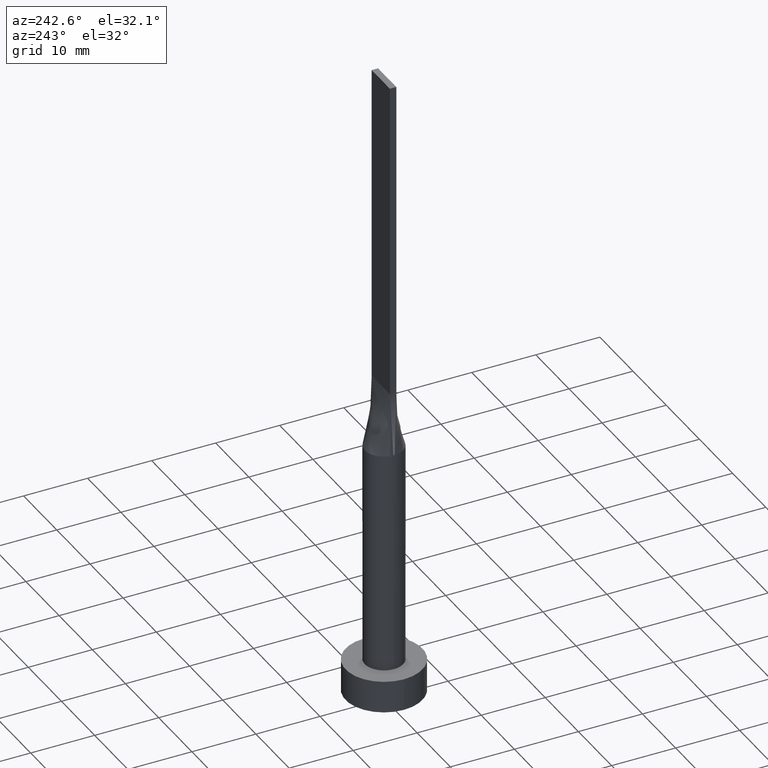
[diagram: clean part render]
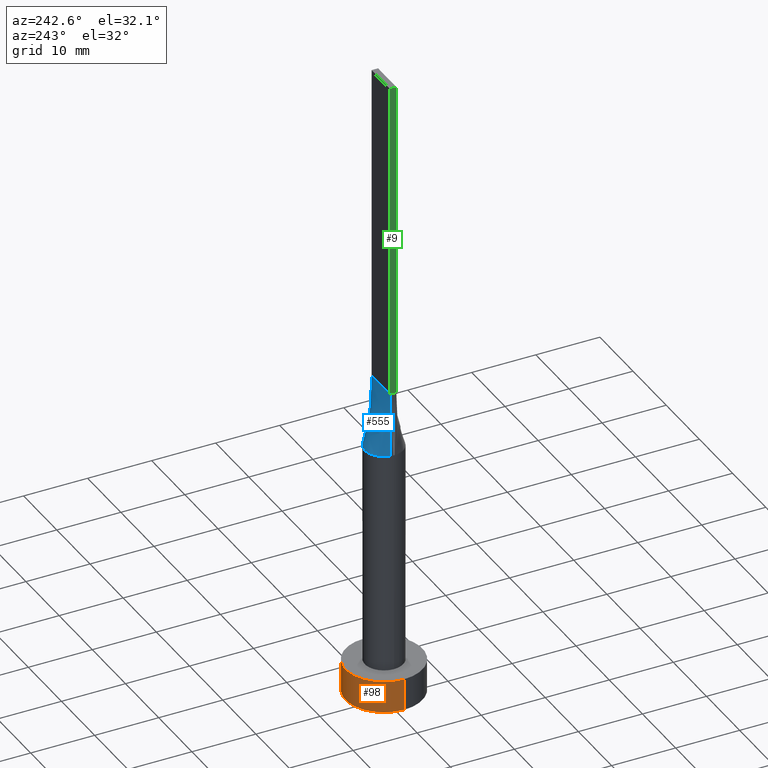
[diagram: same view with three faces highlighted in distinct colors, each labeled with its STEP entity id]
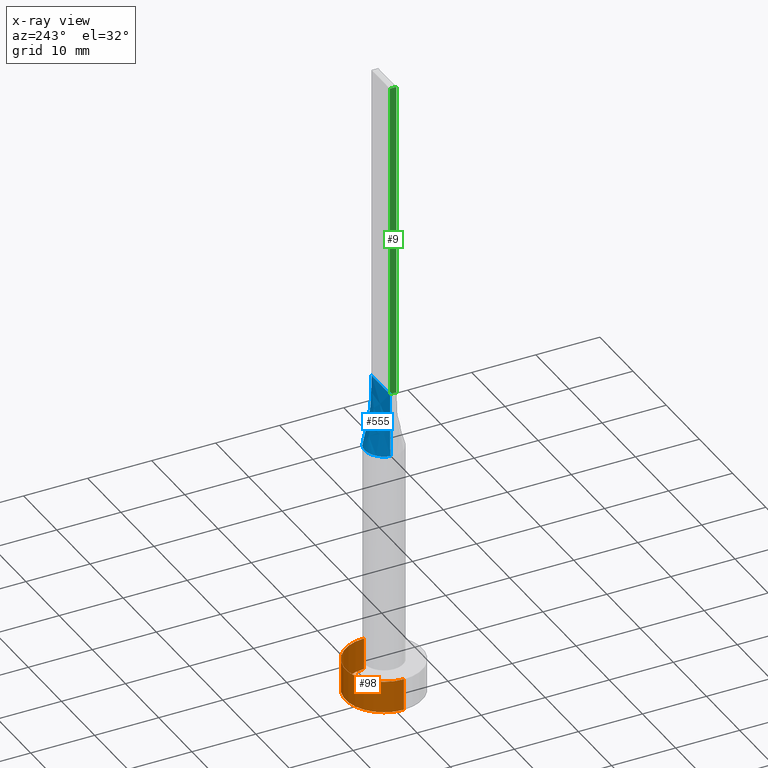
[diagram: x-ray of the same camera — body ghosted, the three highlighted faces saturated]
A machine part, auxiliary view with three faces highlighted in distinct colors.
The next image is the same camera in x-ray (body ghosted, the three faces saturated) — at least one of them is partly hidden behind the body in this view.
Their STEP definitions:

[orange] entity #98 — the highlighted cylindrical surface (partial cylindrical patch) has radius 6 mm, axis along (-0, -0, -1).
#4 = VERTEX_POINT ( 'NONE', #68 ) ;
#30 = VECTOR ( 'NONE', #158, 1000.000000000000000 ) ;
#44 = CIRCLE ( 'NONE', #367, 6.000000000000000888 ) ;
#45 = EDGE_LOOP ( 'NONE', ( #151, #73, #224, #154 ) ) ;
#63 = DIRECTION ( 'NONE',  ( -0.000000000000000000, -0.000000000000000000, -1.000000000000000000 ) ) ;
#65 = CARTESIAN_POINT ( 'NONE',  ( -6.000000000000000888, 0.000000000000000000, 0.000000000000000000 ) ) ;
#68 = CARTESIAN_POINT ( 'NONE',  ( 6.000000000000000888, 7.347880794884120722E-16, 5.000000000000000000 ) ) ;
#73 = ORIENTED_EDGE ( 'NONE', *, *, #536, .T. ) ;
#78 = LINE ( 'NONE', #255, #491 ) ;
#80 = DIRECTION ( 'NONE',  ( 1.000000000000000000, 0.000000000000000000, 0.000000000000000000 ) ) ;
#84 = VERTEX_POINT ( 'NONE', #65 ) ;
#90 = VERTEX_POINT ( 'NONE', #289 ) ;
#98 = ADVANCED_FACE ( 'NONE', ( #249 ), #427, .T. ) ;
#141 = CARTESIAN_POINT ( 'NONE',  ( 0.000000000000000000, 0.000000000000000000, 0.000000000000000000 ) ) ;
#151 = ORIENTED_EDGE ( 'NONE', *, *, #271, .F. ) ;
#154 = ORIENTED_EDGE ( 'NONE', *, *, #199, .F. ) ;
#158 = DIRECTION ( 'NONE',  ( -0.000000000000000000, -0.000000000000000000, -1.000000000000000000 ) ) ;
#170 = CARTESIAN_POINT ( 'NONE',  ( -6.000000000000000888, 0.000000000000000000, 5.000000000000000000 ) ) ;
#193 = CARTESIAN_POINT ( 'NONE',  ( 0.000000000000000000, 0.000000000000000000, 5.000000000000000000 ) ) ;
#199 = EDGE_CURVE ( 'NONE', #264, #84, #78, .T. ) ;
#200 = CARTESIAN_POINT ( 'NONE',  ( 6.000000000000000888, 7.347880794884120722E-16, 5.000000000000000000 ) ) ;
#213 = AXIS2_PLACEMENT_3D ( 'NONE', #141, #406, #455 ) ;
#224 = ORIENTED_EDGE ( 'NONE', *, *, #405, .T. ) ;
#249 = FACE_OUTER_BOUND ( 'NONE', #45, .T. ) ;
#250 = CIRCLE ( 'NONE', #213, 6.000000000000000888 ) ;
#255 = CARTESIAN_POINT ( 'NONE',  ( -6.000000000000000888, 0.000000000000000000, 5.000000000000000000 ) ) ;
#258 = DIRECTION ( 'NONE',  ( 0.000000000000000000, 0.000000000000000000, 1.000000000000000000 ) ) ;
#264 = VERTEX_POINT ( 'NONE', #170 ) ;
#271 = EDGE_CURVE ( 'NONE', #4, #264, #44, .T. ) ;
#289 = CARTESIAN_POINT ( 'NONE',  ( 6.000000000000000888, 7.347880794884120722E-16, 0.000000000000000000 ) ) ;
#298 = DIRECTION ( 'NONE',  ( -0.000000000000000000, -0.000000000000000000, -1.000000000000000000 ) ) ;
#367 = AXIS2_PLACEMENT_3D ( 'NONE', #569, #258, #80 ) ;
#368 = LINE ( 'NONE', #200, #30 ) ;
#405 = EDGE_CURVE ( 'NONE', #90, #84, #250, .T. ) ;
#406 = DIRECTION ( 'NONE',  ( 0.000000000000000000, 0.000000000000000000, 1.000000000000000000 ) ) ;
#427 = CYLINDRICAL_SURFACE ( 'NONE', #515, 6.000000000000000888 ) ;
#455 = DIRECTION ( 'NONE',  ( 1.000000000000000000, 0.000000000000000000, 0.000000000000000000 ) ) ;
#491 = VECTOR ( 'NONE', #298, 1000.000000000000000 ) ;
#515 = AXIS2_PLACEMENT_3D ( 'NONE', #193, #63, #550 ) ;
#536 = EDGE_CURVE ( 'NONE', #4, #90, #368, .T. ) ;
#550 = DIRECTION ( 'NONE',  ( -1.000000000000000000, 0.000000000000000000, 0.000000000000000000 ) ) ;
#569 = CARTESIAN_POINT ( 'NONE',  ( 0.000000000000000000, 0.000000000000000000, 5.000000000000000000 ) ) ;

[blue] entity #555 — the highlighted face is a freeform B-spline surface patch.
#15 = CARTESIAN_POINT ( 'NONE',  ( 1.604166666666662078, 0.5000000000000002220, 50.00000000000000000 ) ) ;
#19 = CARTESIAN_POINT ( 'NONE',  ( 2.567367750129863957, 1.580669302822274913, 40.00000000000000000 ) ) ;
#35 = CARTESIAN_POINT ( 'NONE',  ( -2.520833333333333925, 0.5000000000000002220, 50.00000000000000000 ) ) ;
#42 = CARTESIAN_POINT ( 'NONE',  ( 0.8331239790496237640, 2.909606296598776787, 40.00000000000000000 ) ) ;
#53 = ORIENTED_EDGE ( 'NONE', *, *, #422, .F. ) ;
#61 = CARTESIAN_POINT ( 'NONE',  ( 1.566158656300002061, 2.589797565249318811, 40.00000000000000000 ) ) ;
#85 = B_SPLINE_CURVE_WITH_KNOTS ( 'NONE', 3,
 ( #393, #215, #575, #349, #172, #436, #395, #42, #345, #214, #520, #291, #526, #384, #477, #128, #523, #252 ),
 .UNSPECIFIED., .F., .F.,
 ( 4, 2, 2, 2, 2, 2, 2, 2, 4 ),
 ( 0.000000000000000000, 0.1250000000000000000, 0.2500000000000000000, 0.3750000000000000000, 0.5000000000000000000, 0.6250000000000000000, 0.7500000000000000000, 0.8750000000000000000, 1.000000000000000000 ),
 .UNSPECIFIED. ) ;
#93 = DIRECTION ( 'NONE',  ( -0.02015674154923149941, -0.003664862099860194400, 0.9997901152521495582 ) ) ;
#95 = VECTOR ( 'NONE', #103, 1000.000000000000000 ) ;
#100 = VERTEX_POINT ( 'NONE', #149 ) ;
#103 = DIRECTION ( 'NONE',  ( -1.000000000000000000, -0.000000000000000000, -0.000000000000000000 ) ) ;
#111 = CARTESIAN_POINT ( 'NONE',  ( 0.4172881767044975820, 3.000000000000000000, 40.00000000000000000 ) ) ;
#116 = ORIENTED_EDGE ( 'NONE', *, *, #466, .F. ) ;
#127 = CARTESIAN_POINT ( 'NONE',  ( -2.291666666666668295, 0.5000000000000002220, 50.00000000000000000 ) ) ;
#128 = CARTESIAN_POINT ( 'NONE',  ( -2.829409566978765334, 1.041313647073049298, 40.00000000000001421 ) ) ;
#148 = CARTESIAN_POINT ( 'NONE',  ( 1.833333333333329485, 0.5000000000000002220, 50.00000000000000000 ) ) ;
#149 = CARTESIAN_POINT ( 'NONE',  ( -2.750000000000000000, 0.5000000000000002220, 50.00000000000000000 ) ) ;
#152 = LINE ( 'NONE', #321, #446 ) ;
#156 = DIRECTION ( 'NONE',  ( 0.02015674154923146125, -0.003664862099860172716, 0.9997901152521495582 ) ) ;
#171 = CARTESIAN_POINT ( 'NONE',  ( -2.907609730299723250, 0.7786563145999495505, 40.00000000000000000 ) ) ;
#172 = CARTESIAN_POINT ( 'NONE',  ( 2.382399439808187580, 1.857547746650221709, 40.00000000000000000 ) ) ;
#174 = CARTESIAN_POINT ( 'NONE',  ( -2.951609730299722401, 0.5366563145999488915, 40.00000000000000000 ) ) ;
#176 = EDGE_CURVE ( 'NONE', #312, #285, #85, .T. ) ;
#177 = LINE ( 'NONE', #316, #95 ) ;
#186 = ORIENTED_EDGE ( 'NONE', *, *, #493, .T. ) ;
#188 = ORIENTED_EDGE ( 'NONE', *, *, #176, .T. ) ;
#189 = CARTESIAN_POINT ( 'NONE',  ( 2.750000000000000000, 0.5000000000000002220, 50.00000000000000000 ) ) ;
#192 = CARTESIAN_POINT ( 'NONE',  ( 2.520833333333332593, 0.5000000000000002220, 50.00000000000000000 ) ) ;
#194 = CARTESIAN_POINT ( 'NONE',  ( 0.8331239790496237640, 2.909606296598776787, 40.00000000000000000 ) ) ;
#214 = CARTESIAN_POINT ( 'NONE',  ( -0.4172881767044976375, 2.999999999999999556, 40.00000000000000000 ) ) ;
#215 = CARTESIAN_POINT ( 'NONE',  ( 2.907609730299723250, 0.7786563145999496616, 39.99999999999999289 ) ) ;
#233 = CARTESIAN_POINT ( 'NONE',  ( 0.9166666666666606345, 0.5000000000000002220, 50.00000000000000711 ) ) ;
#252 = CARTESIAN_POINT ( 'NONE',  ( -2.951881273711813858, 0.5367053345652121887, 40.00000000000000000 ) ) ;
#277 = CARTESIAN_POINT ( 'NONE',  ( 2.951609730299722401, 0.5366563145999496687, 40.00000000000000000 ) ) ;
#280 = FACE_OUTER_BOUND ( 'NONE', #551, .T. ) ;
#284 = CARTESIAN_POINT ( 'NONE',  ( 2.907609730299723250, 0.7786563145999496616, 39.99999999999999289 ) ) ;
#285 = VERTEX_POINT ( 'NONE', #474 ) ;
#291 = CARTESIAN_POINT ( 'NONE',  ( -1.566158656300002061, 2.589797565249319700, 40.00000000000000000 ) ) ;
#294 = CARTESIAN_POINT ( 'NONE',  ( -0.8331239790496237640, 2.909606296598777231, 40.00000000000000000 ) ) ;
#297 = CARTESIAN_POINT ( 'NONE',  ( -1.833333333333337256, 0.5000000000000002220, 50.00000000000000000 ) ) ;
#312 = VERTEX_POINT ( 'NONE', #387 ) ;
#316 = CARTESIAN_POINT ( 'NONE',  ( -2.750000000000000000, 0.5000000000000002220, 50.00000000000000000 ) ) ;
#317 = CARTESIAN_POINT ( 'NONE',  ( 2.382399439808187580, 1.857547746650221709, 40.00000000000000000 ) ) ;
#321 = CARTESIAN_POINT ( 'NONE',  ( -2.850804865149861200, 0.5183281572999746123, 45.00000000000000000 ) ) ;
#332 = CARTESIAN_POINT ( 'NONE',  ( -2.829409566978765334, 1.041313647073049298, 40.00000000000001421 ) ) ;
#335 = CARTESIAN_POINT ( 'NONE',  ( -2.567367750129864401, 1.580669302822275357, 40.00000000000000711 ) ) ;
#342 = CARTESIAN_POINT ( 'NONE',  ( -1.604166666666671182, 0.5000000000000002220, 50.00000000000000000 ) ) ;
#345 = CARTESIAN_POINT ( 'NONE',  ( 0.4172881767044975820, 3.000000000000000000, 40.00000000000000000 ) ) ;
#349 = CARTESIAN_POINT ( 'NONE',  ( 2.567367750129863957, 1.580669302822274913, 40.00000000000000000 ) ) ;
#354 = VERTEX_POINT ( 'NONE', #189 ) ;
#370 = CARTESIAN_POINT ( 'NONE',  ( 0.4583333333333267645, 0.5000000000000002220, 50.00000000000000711 ) ) ;
#380 = B_SPLINE_SURFACE_WITH_KNOTS ( 'NONE', 3, 1, ( 
 ( #277, #509 ),
 ( #284, #192 ),
 ( #461, #467 ),
 ( #19, #148 ),
 ( #317, #15 ),
 ( #504, #458 ),
 ( #61, #233 ),
 ( #194, #370 ),
 ( #111, #389 ),
 ( #524, #522 ),
 ( #294, #385 ),
 ( #475, #574 ),
 ( #382, #392 ),
 ( #478, #342 ),
 ( #335, #297 ),
 ( #332, #127 ),
 ( #171, #35 ),
 ( #174, #519 ) ),
 .UNSPECIFIED., .F., .F., .F.,
 ( 4, 2, 2, 2, 2, 2, 2, 2, 4 ),
 ( 2, 2 ),
 ( 0.000000000000000000, 0.1250000000000000000, 0.2500000000000000000, 0.3750000000000000000, 0.5000000000000000000, 0.6250000000000000000, 0.7500000000000000000, 0.8750000000000000000, 1.000000000000000000 ),
 ( 0.000000000000000000, 1.000000000000000000 ),
 .UNSPECIFIED. ) ;
#382 = CARTESIAN_POINT ( 'NONE',  ( -1.882426928433513336, 2.362790634184935623, 40.00000000000000000 ) ) ;
#384 = CARTESIAN_POINT ( 'NONE',  ( -2.382399439808186692, 1.857547746650221265, 39.99999999999998579 ) ) ;
#385 = CARTESIAN_POINT ( 'NONE',  ( -0.4583333333333398651, 0.5000000000000002220, 50.00000000000000000 ) ) ;
#387 = CARTESIAN_POINT ( 'NONE',  ( 2.951871110830718514, 0.5367036202482695639, 40.00000000000000000 ) ) ;
#389 = CARTESIAN_POINT ( 'NONE',  ( 0.2291666666666599961, 0.5000000000000002220, 50.00000000000000711 ) ) ;
#392 = CARTESIAN_POINT ( 'NONE',  ( -1.145833333333339032, 0.5000000000000002220, 50.00000000000000000 ) ) ;
#393 = CARTESIAN_POINT ( 'NONE',  ( 2.951871110830718514, 0.5367036202482695639, 40.00000000000000000 ) ) ;
#395 = CARTESIAN_POINT ( 'NONE',  ( 1.566158656300002061, 2.589797565249318811, 40.00000000000000000 ) ) ;
#418 = VECTOR ( 'NONE', #93, 1000.000000000000114 ) ;
#422 = EDGE_CURVE ( 'NONE', #354, #100, #177, .T. ) ;
#436 = CARTESIAN_POINT ( 'NONE',  ( 1.882426928433512892, 2.362790634184934291, 40.00000000000000000 ) ) ;
#446 = VECTOR ( 'NONE', #156, 1000.000000000000114 ) ;
#458 = CARTESIAN_POINT ( 'NONE',  ( 1.145833333333327708, 0.5000000000000002220, 50.00000000000000711 ) ) ;
#461 = CARTESIAN_POINT ( 'NONE',  ( 2.829409566978765778, 1.041313647073049298, 40.00000000000001421 ) ) ;
#466 = EDGE_CURVE ( 'NONE', #312, #354, #492, .T. ) ;
#467 = CARTESIAN_POINT ( 'NONE',  ( 2.291666666666664298, 0.5000000000000002220, 50.00000000000000000 ) ) ;
#474 = CARTESIAN_POINT ( 'NONE',  ( -2.951881273711813858, 0.5367053345652121887, 40.00000000000000000 ) ) ;
#475 = CARTESIAN_POINT ( 'NONE',  ( -1.566158656300002061, 2.589797565249319700, 40.00000000000000000 ) ) ;
#477 = CARTESIAN_POINT ( 'NONE',  ( -2.567367750129864401, 1.580669302822275357, 40.00000000000000711 ) ) ;
#478 = CARTESIAN_POINT ( 'NONE',  ( -2.382399439808186692, 1.857547746650221265, 39.99999999999998579 ) ) ;
#492 = LINE ( 'NONE', #546, #418 ) ;
#493 = EDGE_CURVE ( 'NONE', #285, #100, #152, .T. ) ;
#504 = CARTESIAN_POINT ( 'NONE',  ( 1.882426928433512892, 2.362790634184934291, 40.00000000000000000 ) ) ;
#509 = CARTESIAN_POINT ( 'NONE',  ( 2.750000000000000000, 0.5000000000000002220, 50.00000000000000000 ) ) ;
#519 = CARTESIAN_POINT ( 'NONE',  ( -2.750000000000000000, 0.5000000000000002220, 50.00000000000000000 ) ) ;
#520 = CARTESIAN_POINT ( 'NONE',  ( -0.8331239790496237640, 2.909606296598777231, 40.00000000000000000 ) ) ;
#522 = CARTESIAN_POINT ( 'NONE',  ( -0.2291666666666733743, 0.5000000000000002220, 50.00000000000000711 ) ) ;
#523 = CARTESIAN_POINT ( 'NONE',  ( -2.907609730299723250, 0.7786563145999495505, 40.00000000000000000 ) ) ;
#524 = CARTESIAN_POINT ( 'NONE',  ( -0.4172881767044976375, 2.999999999999999556, 40.00000000000000000 ) ) ;
#526 = CARTESIAN_POINT ( 'NONE',  ( -1.882426928433513336, 2.362790634184935623, 40.00000000000000000 ) ) ;
#546 = CARTESIAN_POINT ( 'NONE',  ( 2.850804865149861644, 0.5183281572999747233, 45.00000000000000000 ) ) ;
#551 = EDGE_LOOP ( 'NONE', ( #188, #186, #53, #116 ) ) ;
#555 = ADVANCED_FACE ( 'NONE', ( #280 ), #380, .T. ) ;
#574 = CARTESIAN_POINT ( 'NONE',  ( -0.9166666666666726249, 0.5000000000000002220, 50.00000000000000000 ) ) ;
#575 = CARTESIAN_POINT ( 'NONE',  ( 2.829409566978765778, 1.041313647073049298, 40.00000000000001421 ) ) ;

[green] entity #9 — the highlighted planar face has unit normal (1, 0, -0).
#9 = ADVANCED_FACE ( 'NONE', ( #572 ), #337, .F. ) ;
#13 = VECTOR ( 'NONE', #40, 1000.000000000000000 ) ;
#23 = DIRECTION ( 'NONE',  ( -0.000000000000000000, -0.000000000000000000, -1.000000000000000000 ) ) ;
#38 = EDGE_CURVE ( 'NONE', #254, #407, #110, .T. ) ;
#39 = DIRECTION ( 'NONE',  ( 1.000000000000000000, 0.000000000000000000, -0.000000000000000000 ) ) ;
#40 = DIRECTION ( 'NONE',  ( -0.000000000000000000, -0.000000000000000000, -1.000000000000000000 ) ) ;
#76 = EDGE_LOOP ( 'NONE', ( #540, #433, #217, #190 ) ) ;
#81 = VECTOR ( 'NONE', #91, 1000.000000000000000 ) ;
#89 = CARTESIAN_POINT ( 'NONE',  ( -2.750000000000000000, 0.5000000000000002220, 100.0000000000000000 ) ) ;
#91 = DIRECTION ( 'NONE',  ( 0.000000000000000000, -1.000000000000000000, 0.000000000000000000 ) ) ;
#100 = VERTEX_POINT ( 'NONE', #149 ) ;
#101 = AXIS2_PLACEMENT_3D ( 'NONE', #89, #39, #236 ) ;
#110 = LINE ( 'NONE', #459, #125 ) ;
#115 = VERTEX_POINT ( 'NONE', #238 ) ;
#124 = LINE ( 'NONE', #530, #81 ) ;
#125 = VECTOR ( 'NONE', #23, 1000.000000000000000 ) ;
#146 = DIRECTION ( 'NONE',  ( 0.000000000000000000, -1.000000000000000000, 0.000000000000000000 ) ) ;
#149 = CARTESIAN_POINT ( 'NONE',  ( -2.750000000000000000, 0.5000000000000002220, 50.00000000000000000 ) ) ;
#190 = ORIENTED_EDGE ( 'NONE', *, *, #320, .T. ) ;
#191 = LINE ( 'NONE', #494, #239 ) ;
#206 = CARTESIAN_POINT ( 'NONE',  ( -2.750000000000000000, 0.5000000000000002220, 100.0000000000000000 ) ) ;
#217 = ORIENTED_EDGE ( 'NONE', *, *, #449, .F. ) ;
#222 = EDGE_CURVE ( 'NONE', #100, #407, #124, .T. ) ;
#236 = DIRECTION ( 'NONE',  ( -0.000000000000000000, 0.000000000000000000, -1.000000000000000000 ) ) ;
#238 = CARTESIAN_POINT ( 'NONE',  ( -2.750000000000000000, 0.5000000000000002220, 100.0000000000000000 ) ) ;
#239 = VECTOR ( 'NONE', #146, 1000.000000000000000 ) ;
#254 = VERTEX_POINT ( 'NONE', #479 ) ;
#309 = CARTESIAN_POINT ( 'NONE',  ( -2.750000000000000000, -0.4999999999999994449, 50.00000000000000000 ) ) ;
#320 = EDGE_CURVE ( 'NONE', #115, #100, #336, .T. ) ;
#336 = LINE ( 'NONE', #206, #13 ) ;
#337 = PLANE ( 'NONE',  #101 ) ;
#407 = VERTEX_POINT ( 'NONE', #309 ) ;
#433 = ORIENTED_EDGE ( 'NONE', *, *, #38, .F. ) ;
#449 = EDGE_CURVE ( 'NONE', #115, #254, #191, .T. ) ;
#459 = CARTESIAN_POINT ( 'NONE',  ( -2.750000000000000000, -0.4999999999999994449, 100.0000000000000000 ) ) ;
#479 = CARTESIAN_POINT ( 'NONE',  ( -2.750000000000000000, -0.4999999999999994449, 100.0000000000000000 ) ) ;
#494 = CARTESIAN_POINT ( 'NONE',  ( -2.750000000000000000, 0.5000000000000002220, 100.0000000000000000 ) ) ;
#530 = CARTESIAN_POINT ( 'NONE',  ( -2.750000000000000000, 0.5000000000000002220, 50.00000000000000000 ) ) ;
#540 = ORIENTED_EDGE ( 'NONE', *, *, #222, .T. ) ;
#572 = FACE_OUTER_BOUND ( 'NONE', #76, .T. ) ;